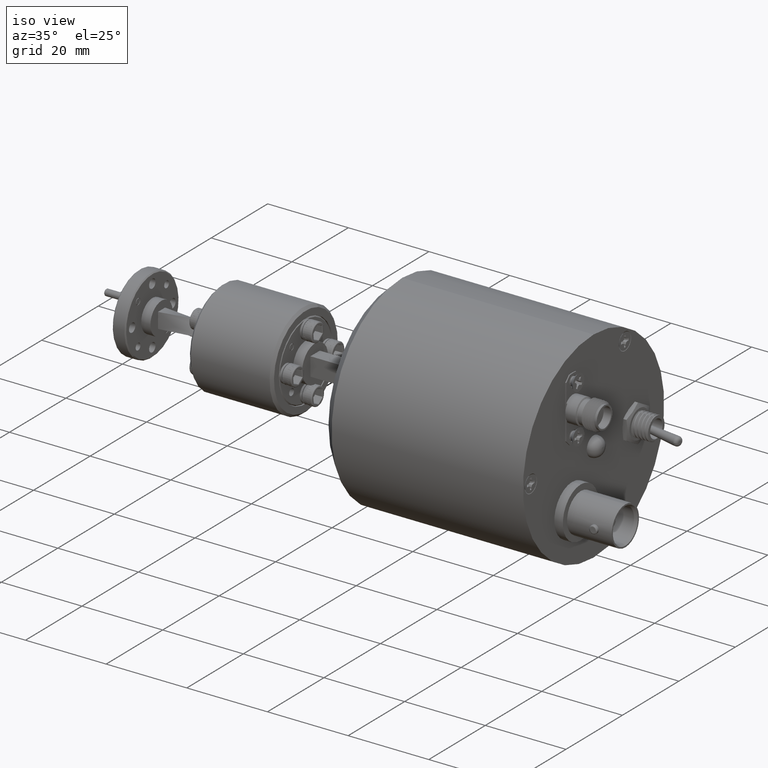
[diagram: clean part render]
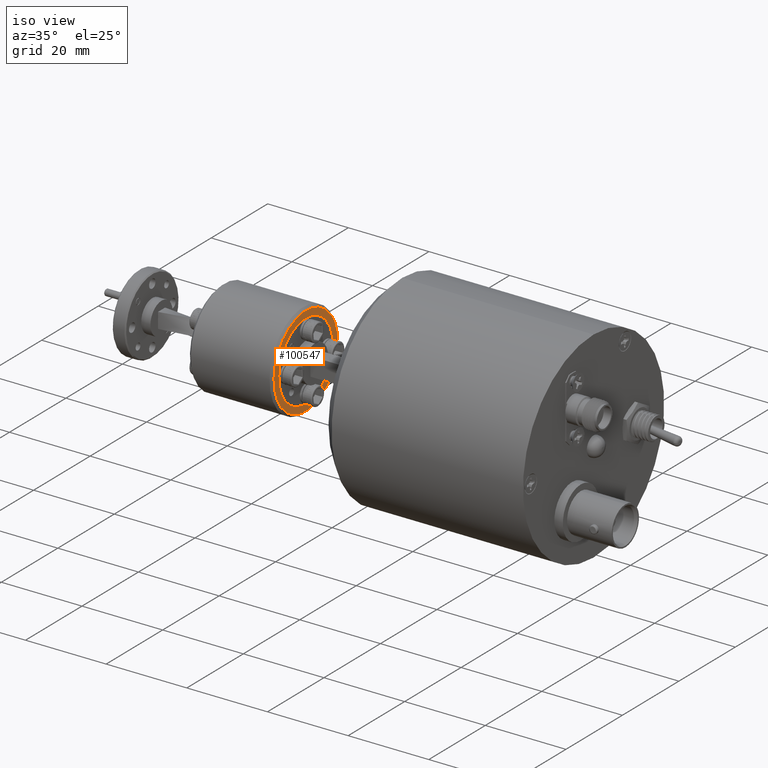
[diagram: same view with one face highlighted and labeled with its STEP entity id]
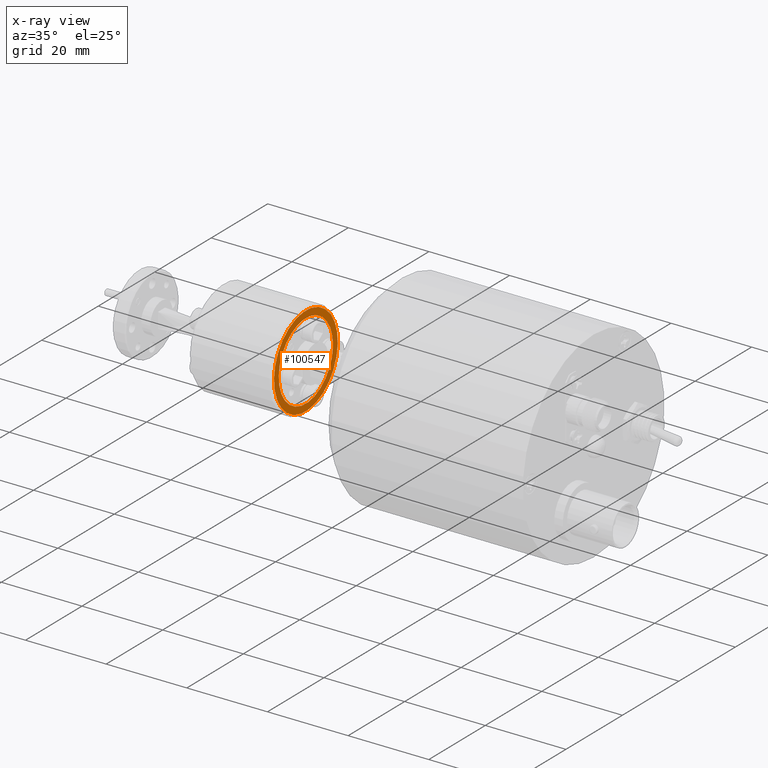
[diagram: x-ray of the same camera — body ghosted, the highlighted face saturated]
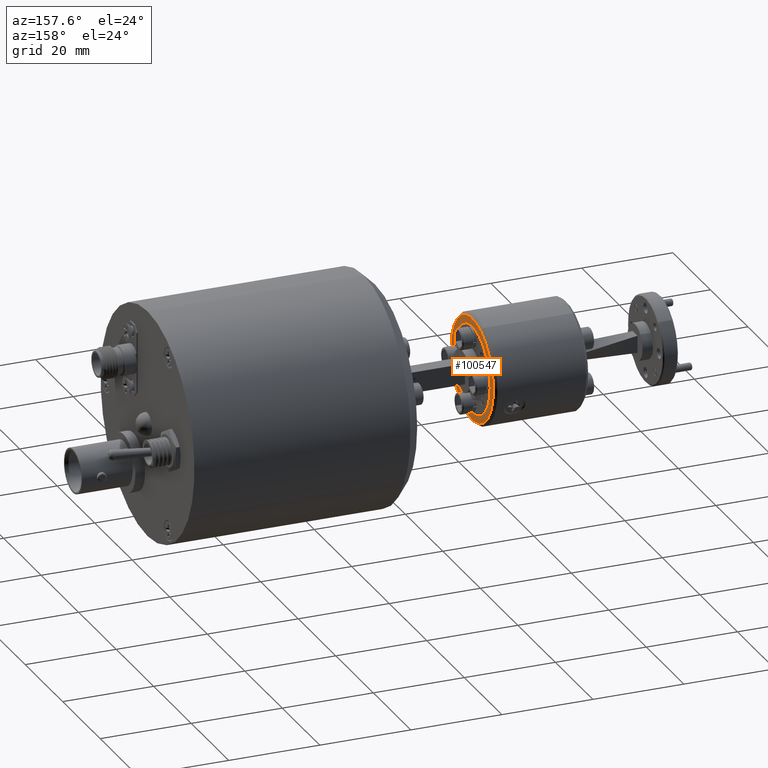
[diagram: same view with one face highlighted and labeled with its STEP entity id]
A machine part, iso view. The second image highlights one B-rep face of the part: STEP entity #100547.
The next image is the same camera in x-ray: the body ghosted, the highlighted face saturated — about 1% of this face is hidden behind the body in this view.
A second angle (auxiliary view) of the same face is appended — the face is thin or edge-on in the first view.
In plain terms, the highlighted planar face has unit normal (1, -0, 0).
Its self-contained STEP definition (entity closure, byte-faithful):
#4902 = AXIS2_PLACEMENT_3D ( 'NONE', #72670, #73016, #64148 ) ;
#10153 = ORIENTED_EDGE ( 'NONE', *, *, #96858, .T. ) ;
#12025 = EDGE_CURVE ( 'NONE', #78596, #33256, #65770, .T. ) ;
#12713 = CARTESIAN_POINT ( 'NONE',  ( -16.84519760036605600, 34.78858904316366800, 36.62254942233104100 ) ) ;
#13750 = DIRECTION ( 'NONE',  ( 1.000000000000000000, -2.551137404068023700E-017, 9.134714803291777100E-018 ) ) ;
#17961 = AXIS2_PLACEMENT_3D ( 'NONE', #12713, #13750, #29016 ) ;
#23769 = CARTESIAN_POINT ( 'NONE',  ( -16.84519760036605600, 31.03710133231244900, 27.78459822336347400 ) ) ;
#29016 = DIRECTION ( 'NONE',  ( 0.0000000000000000000, -0.3907311284892742200, -0.9205048534524400400 ) ) ;
#29320 = VERTEX_POINT ( 'NONE', #42531 ) ;
#33256 = VERTEX_POINT ( 'NONE', #98365 ) ;
#35008 = DIRECTION ( 'NONE',  ( 0.0000000000000000000, -0.3907311284892745500, -0.9205048534524399300 ) ) ;
#36500 = DIRECTION ( 'NONE',  ( 0.0000000000000000000, -0.3907311284892742200, -0.9205048534524400400 ) ) ;
#36849 = CARTESIAN_POINT ( 'NONE',  ( -16.84519760036605600, 34.78858904316366800, 36.62254942233104100 ) ) ;
#37239 = FACE_BOUND ( 'NONE', #77306, .T. ) ;
#37315 = EDGE_CURVE ( 'NONE', #33256, #78596, #55260, .T. ) ;
#42531 = CARTESIAN_POINT ( 'NONE',  ( -16.84519760036605600, 39.20502298847793600, 47.02701578090398000 ) ) ;
#42539 = DIRECTION ( 'NONE',  ( -1.559538656864311900E-018, -0.3907311284892744900, -0.9205048534524400400 ) ) ;
#43774 = ORIENTED_EDGE ( 'NONE', *, *, #63064, .T. ) ;
#55260 = CIRCLE ( 'NONE', #4902, 9.601200000000009300 ) ;
#56161 = CARTESIAN_POINT ( 'NONE',  ( -16.84519760036605600, 30.37215509784940100, 26.21808306375810500 ) ) ;
#58458 = CIRCLE ( 'NONE', #17961, 11.30300000000000600 ) ;
#58541 = DIRECTION ( 'NONE',  ( 1.000000000000000000, -2.551137404066901700E-017, 9.134714803318222400E-018 ) ) ;
#63064 = EDGE_CURVE ( 'NONE', #29320, #73071, #72351, .T. ) ;
#63301 = EDGE_LOOP ( 'NONE', ( #43774, #10153 ) ) ;
#64148 = DIRECTION ( 'NONE',  ( 0.0000000000000000000, -0.3907311284892745500, -0.9205048534524399300 ) ) ;
#65770 = CIRCLE ( 'NONE', #99177, 9.601200000000009300 ) ;
#66980 = CARTESIAN_POINT ( 'NONE',  ( -16.84519760036605600, 34.78858904316366800, 36.62254942233104100 ) ) ;
#72295 = AXIS2_PLACEMENT_3D ( 'NONE', #99247, #58541, #42539 ) ;
#72351 = CIRCLE ( 'NONE', #92417, 11.30300000000000600 ) ;
#72670 = CARTESIAN_POINT ( 'NONE',  ( -16.84519760036605600, 34.78858904316366800, 36.62254942233104100 ) ) ;
#73016 = DIRECTION ( 'NONE',  ( 1.000000000000000000, -2.551137404068023700E-017, 9.134714803291777100E-018 ) ) ;
#73071 = VERTEX_POINT ( 'NONE', #56161 ) ;
#77306 = EDGE_LOOP ( 'NONE', ( #85442, #101790 ) ) ;
#78596 = VERTEX_POINT ( 'NONE', #23769 ) ;
#83893 = DIRECTION ( 'NONE',  ( 1.000000000000000000, -2.551137404068023700E-017, 9.134714803291777100E-018 ) ) ;
#85039 = DIRECTION ( 'NONE',  ( 1.000000000000000000, -2.551137404068023700E-017, 9.134714803291777100E-018 ) ) ;
#85442 = ORIENTED_EDGE ( 'NONE', *, *, #37315, .F. ) ;
#90525 = FACE_OUTER_BOUND ( 'NONE', #63301, .T. ) ;
#91095 = PLANE ( 'NONE',  #72295 ) ;
#92417 = AXIS2_PLACEMENT_3D ( 'NONE', #36849, #85039, #36500 ) ;
#96858 = EDGE_CURVE ( 'NONE', #73071, #29320, #58458, .T. ) ;
#98365 = CARTESIAN_POINT ( 'NONE',  ( -16.84519760036605600, 38.54007675401488300, 45.46050062129861400 ) ) ;
#99177 = AXIS2_PLACEMENT_3D ( 'NONE', #66980, #83893, #35008 ) ;
#99247 = CARTESIAN_POINT ( 'NONE',  ( -16.84519760036605600, 34.78858904316366800, 36.62254942233104100 ) ) ;
#100547 = ADVANCED_FACE ( 'NONE', ( #90525, #37239 ), #91095, .T. ) ;
#101790 = ORIENTED_EDGE ( 'NONE', *, *, #12025, .F. ) ;